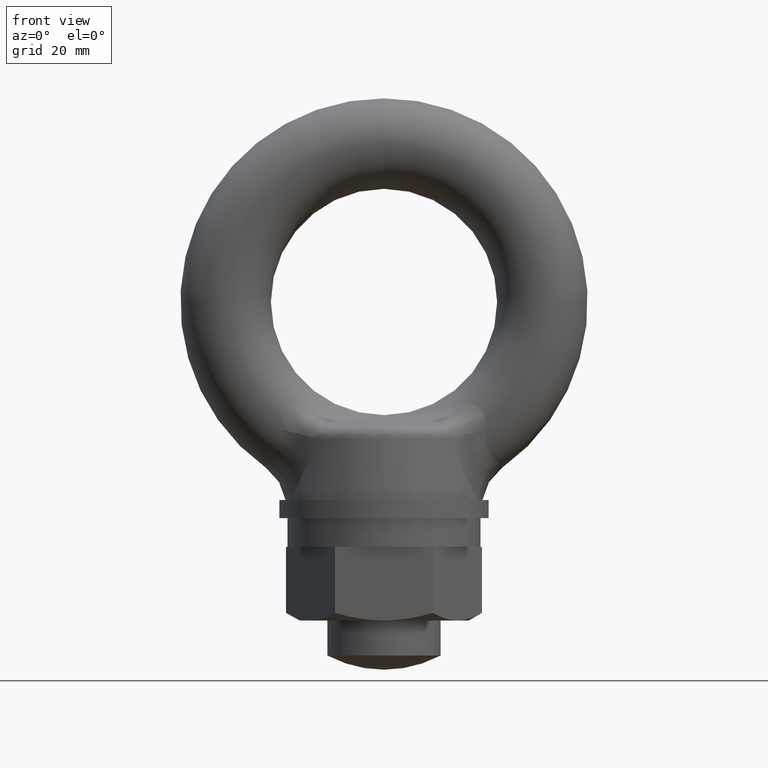
[diagram: clean part render]
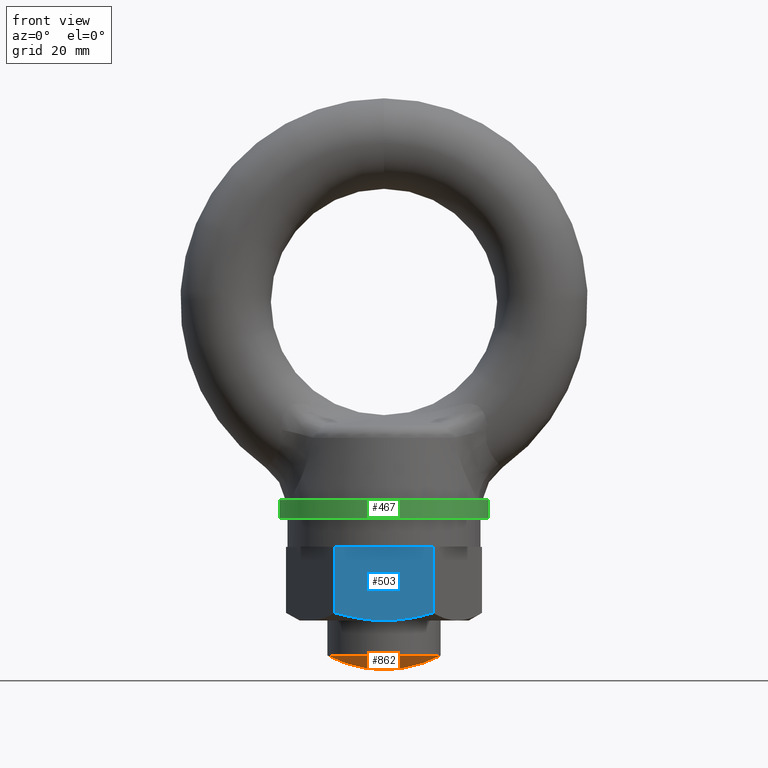
[diagram: same view with three faces highlighted in distinct colors, each labeled with its STEP entity id]
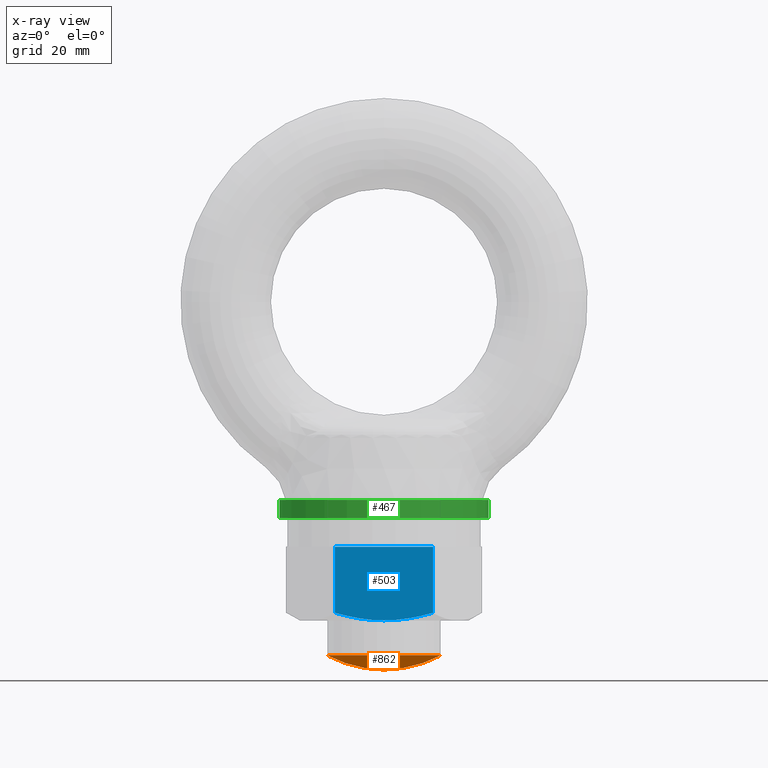
[diagram: x-ray of the same camera — body ghosted, the three highlighted faces saturated]
A machine part, front view with three faces highlighted in distinct colors.
The next image is the same camera in x-ray (body ghosted, the three faces saturated) — at least one of them is partly hidden behind the body in this view.
Their STEP definitions:

[orange] entity #862 — the highlighted spherical surface has radius 21.25 mm.
#576 = VERTEX_POINT ( 'NONE', #3193 ) ;
#577 = VERTEX_POINT ( 'NONE', #3192 ) ;
#579 = EDGE_CURVE ( 'NONE', #577, #580, #3191, .T. ) ;
#580 = VERTEX_POINT ( 'NONE', #3186 ) ;
#582 = EDGE_CURVE ( 'NONE', #576, #580, #3185, .T. ) ;
#778 = EDGE_CURVE ( 'NONE', #577, #576, #10789, .T. ) ;
#833 = ORIENTED_EDGE ( 'NONE', *, *, #579, .F. ) ;
#834 = ORIENTED_EDGE ( 'NONE', *, *, #778, .T. ) ;
#835 = ORIENTED_EDGE ( 'NONE', *, *, #582, .T. ) ;
#862 = ADVANCED_FACE ( 'NONE', ( #7627 ), #7624, .T. ) ;
#863 = EDGE_LOOP ( 'NONE', ( #833, #834, #835 ) ) ;
#3181 = DIRECTION ( 'NONE',  ( 0.0000000000000000000, 0.0000000000000000000, -1.000000000000000000 ) ) ;
#3182 = DIRECTION ( 'NONE',  ( 0.0000000000000000000, -1.000000000000000000, 0.0000000000000000000 ) ) ;
#3183 = CARTESIAN_POINT ( 'NONE',  ( 0.0000000000000000000, 0.0000000000000000000, -43.75000000000000000 ) ) ;
#3184 = AXIS2_PLACEMENT_3D ( 'NONE', #3183, #3182, #3181 ) ;
#3185 = CIRCLE ( 'NONE', #3184, 21.25000000000000400 ) ;
#3186 = CARTESIAN_POINT ( 'NONE',  ( -1.301144250936276000E-015, 0.0000000000000000000, -65.00000000000000000 ) ) ;
#3187 = DIRECTION ( 'NONE',  ( -1.000000000000000000, -1.224606353822377500E-016, 0.0000000000000000000 ) ) ;
#3188 = DIRECTION ( 'NONE',  ( -1.224606353822377300E-016, 1.000000000000000000, 0.0000000000000000000 ) ) ;
#3189 = CARTESIAN_POINT ( 'NONE',  ( 0.0000000000000000000, 0.0000000000000000000, -43.75000000000000000 ) ) ;
#3190 = AXIS2_PLACEMENT_3D ( 'NONE', #3189, #3188, #3187 ) ;
#3191 = CIRCLE ( 'NONE', #3190, 21.25000000000000000 ) ;
#3192 = CARTESIAN_POINT ( 'NONE',  ( 9.999998711995109700, 0.0000000000000000000, -62.50000068693589800 ) ) ;
#3193 = CARTESIAN_POINT ( 'NONE',  ( -9.999998711995109700, 1.224606274957423500E-015, -62.50000068693589800 ) ) ;
#7621 = DIRECTION ( 'NONE',  ( -1.000000000000000000, 0.0000000000000000000, 0.0000000000000000000 ) ) ;
#7622 = DIRECTION ( 'NONE',  ( 0.0000000000000000000, 1.000000000000000000, 0.0000000000000000000 ) ) ;
#7623 = AXIS2_PLACEMENT_3D ( 'NONE', #7626, #7622, #7621 ) ;
#7624 = SPHERICAL_SURFACE ( 'NONE', #7623, 21.25000000000000000 ) ;
#7626 = CARTESIAN_POINT ( 'NONE',  ( 0.0000000000000000000, 0.0000000000000000000, -43.75000000000000000 ) ) ;
#7627 = FACE_OUTER_BOUND ( 'NONE', #863, .T. ) ;
#10789 = CIRCLE ( 'NONE', #10832, 9.999998711995109700 ) ;
#10829 = DIRECTION ( 'NONE',  ( -1.000000000000000000, 0.0000000000000000000, 0.0000000000000000000 ) ) ;
#10830 = DIRECTION ( 'NONE',  ( 0.0000000000000000000, 0.0000000000000000000, -1.000000000000000000 ) ) ;
#10831 = CARTESIAN_POINT ( 'NONE',  ( 0.0000000000000000000, 0.0000000000000000000, -62.50000068693589800 ) ) ;
#10832 = AXIS2_PLACEMENT_3D ( 'NONE', #10831, #10830, #10829 ) ;

[blue] entity #503 — the highlighted planar face has unit normal (0, 1, 0).
#325 = VERTEX_POINT ( 'NONE', #642 ) ;
#328 = EDGE_CURVE ( 'NONE', #329, #325, #640, .T. ) ;
#329 = VERTEX_POINT ( 'NONE', #630 ) ;
#336 = EDGE_LOOP ( 'NONE', ( #504, #508, #511, #513, #514 ) ) ;
#337 = EDGE_CURVE ( 'NONE', #507, #325, #2182, .T. ) ;
#503 = ADVANCED_FACE ( 'NONE', ( #3075 ), #3073, .F. ) ;
#504 = ORIENTED_EDGE ( 'NONE', *, *, #505, .F. ) ;
#505 = EDGE_CURVE ( 'NONE', #506, #507, #3059, .T. ) ;
#506 = VERTEX_POINT ( 'NONE', #3058 ) ;
#507 = VERTEX_POINT ( 'NONE', #3060 ) ;
#508 = ORIENTED_EDGE ( 'NONE', *, *, #509, .F. ) ;
#509 = EDGE_CURVE ( 'NONE', #510, #506, #3049, .T. ) ;
#510 = VERTEX_POINT ( 'NONE', #3045 ) ;
#511 = ORIENTED_EDGE ( 'NONE', *, *, #512, .F. ) ;
#512 = EDGE_CURVE ( 'NONE', #329, #510, #2862, .T. ) ;
#513 = ORIENTED_EDGE ( 'NONE', *, *, #328, .T. ) ;
#514 = ORIENTED_EDGE ( 'NONE', *, *, #337, .F. ) ;
#630 = CARTESIAN_POINT ( 'NONE',  ( -8.660253999999998300, -15.00000000000000000, -43.29999900000014900 ) ) ;
#631 = DIRECTION ( 'NONE',  ( 0.0000000000000000000, 0.0000000000000000000, -1.000000000000000000 ) ) ;
#632 = VECTOR ( 'NONE', #631, 1000.000000000000000 ) ;
#633 = CARTESIAN_POINT ( 'NONE',  ( -8.660253999999998300, -15.00000000000000000, 943.6999969999999400 ) ) ;
#640 = LINE ( 'NONE', #633, #632 ) ;
#642 = CARTESIAN_POINT ( 'NONE',  ( -8.660253999999998300, -15.00000000000000000, -54.96025704876919300 ) ) ;
#2096 = CARTESIAN_POINT ( 'NONE',  ( -7.250773704282158500, -15.00000000000000200, -55.36713896151079000 ) ) ;
#2097 = CARTESIAN_POINT ( 'NONE',  ( -5.808530979648736500, -15.00000000000000000, -55.70798355773236900 ) ) ;
#2098 = CARTESIAN_POINT ( 'NONE',  ( -2.918366813997370200, -15.00000000000000400, -56.17406471936622100 ) ) ;
#2099 = CARTESIAN_POINT ( 'NONE',  ( -1.464404437983628500, -15.00000000000000000, -56.30000300000009600 ) ) ;
#2130 = CARTESIAN_POINT ( 'NONE',  ( -8.660253999999998300, -15.00000000000000000, -54.96025704876919300 ) ) ;
#2179 = CARTESIAN_POINT ( 'NONE',  ( 0.0000000000000000000, -15.00000000000000000, -56.30000300000009600 ) ) ;
#2182 = B_SPLINE_CURVE_WITH_KNOTS ( 'NONE', 3,
 ( #2179, #2099, #2098, #2097, #2096, #2130 ),
 .UNSPECIFIED., .F., .F.,
 ( 4, 2, 4 ),
 ( 0.04779124132650731200, 0.05217642100845698600, 0.05656160069040665900 ),
 .UNSPECIFIED. ) ;
#2859 = DIRECTION ( 'NONE',  ( 1.000000000000000000, 0.0000000000000000000, 0.0000000000000000000 ) ) ;
#2860 = VECTOR ( 'NONE', #2859, 1000.000000000000000 ) ;
#2861 = CARTESIAN_POINT ( 'NONE',  ( -8.660253999999998300, -15.00000000000000000, -43.29999900000014900 ) ) ;
#2862 = LINE ( 'NONE', #2861, #2860 ) ;
#3045 = CARTESIAN_POINT ( 'NONE',  ( 8.660253999999998300, -15.00000000000000000, -43.29999900000014900 ) ) ;
#3046 = DIRECTION ( 'NONE',  ( 0.0000000000000000000, 0.0000000000000000000, -1.000000000000000000 ) ) ;
#3047 = VECTOR ( 'NONE', #3046, 1000.000000000000000 ) ;
#3048 = CARTESIAN_POINT ( 'NONE',  ( 8.660253999999998300, -15.00000000000000000, 943.6999969999999400 ) ) ;
#3049 = LINE ( 'NONE', #3048, #3047 ) ;
#3050 = CARTESIAN_POINT ( 'NONE',  ( 0.0000000000000000000, -15.00000000000000000, -56.30000300000009600 ) ) ;
#3051 = CARTESIAN_POINT ( 'NONE',  ( 0.7327011086299636300, -15.00000000000000200, -56.30000300000008900 ) ) ;
#3052 = CARTESIAN_POINT ( 'NONE',  ( 1.468331681756608600, -15.00000000000000000, -56.26881246783327100 ) ) ;
#3053 = CARTESIAN_POINT ( 'NONE',  ( 2.943301964262833500, -15.00000000000000200, -56.14491709987431300 ) ) ;
#3054 = CARTESIAN_POINT ( 'NONE',  ( 3.672874707161993600, -15.00000000000000000, -56.05316407389835800 ) ) ;
#3055 = CARTESIAN_POINT ( 'NONE',  ( 5.841206664520827400, -14.99999999999999800, -55.70111161903209100 ) ) ;
#3056 = CARTESIAN_POINT ( 'NONE',  ( 7.259722152322114000, -14.99999999999999800, -55.36455576707690800 ) ) ;
#3057 = CARTESIAN_POINT ( 'NONE',  ( 8.660253999999998300, -15.00000000000000000, -54.96025704876919300 ) ) ;
#3058 = CARTESIAN_POINT ( 'NONE',  ( 8.660253999999998300, -15.00000000000000000, -54.96025704876919300 ) ) ;
#3059 = B_SPLINE_CURVE_WITH_KNOTS ( 'NONE', 3,
 ( #3057, #3056, #3055, #3054, #3053, #3052, #3051, #3050 ),
 .UNSPECIFIED., .F., .F.,
 ( 4, 2, 2, 4 ),
 ( 0.03901490623446082800, 0.04340307378048406700, 0.04559715755349569300, 0.04779124132650731200 ),
 .UNSPECIFIED. ) ;
#3060 = CARTESIAN_POINT ( 'NONE',  ( 0.0000000000000000000, -15.00000000000000000, -56.30000300000009600 ) ) ;
#3061 = DIRECTION ( 'NONE',  ( 0.0000000000000000000, 0.0000000000000000000, 1.000000000000000000 ) ) ;
#3062 = DIRECTION ( 'NONE',  ( 0.0000000000000000000, 1.000000000000000000, 0.0000000000000000000 ) ) ;
#3063 = CARTESIAN_POINT ( 'NONE',  ( -8.660253999999998300, -15.00000000000000000, 943.6999969999999400 ) ) ;
#3072 = AXIS2_PLACEMENT_3D ( 'NONE', #3063, #3062, #3061 ) ;
#3073 = PLANE ( 'NONE',  #3072 ) ;
#3075 = FACE_OUTER_BOUND ( 'NONE', #336, .T. ) ;

[green] entity #467 — the highlighted cylindrical surface (partial cylindrical patch) has radius 18.5 mm, axis along (0, 0, -1).
#319 = EDGE_CURVE ( 'NONE', #3567, #3570, #654, .T. ) ;
#467 = ADVANCED_FACE ( 'NONE', ( #2892 ), #2891, .T. ) ;
#468 = EDGE_LOOP ( 'NONE', ( #3587, #3588, #3543, #3544 ) ) ;
#650 = DIRECTION ( 'NONE',  ( 1.000000000000000000, 0.0000000000000000000, 0.0000000000000000000 ) ) ;
#651 = DIRECTION ( 'NONE',  ( 0.0000000000000000000, 0.0000000000000000000, -1.000000000000000000 ) ) ;
#652 = CARTESIAN_POINT ( 'NONE',  ( 0.0000000000000000000, 0.0000000000000000000, -38.20000100000019900 ) ) ;
#653 = AXIS2_PLACEMENT_3D ( 'NONE', #652, #651, #650 ) ;
#654 = CIRCLE ( 'NONE', #653, 18.50000000000000000 ) ;
#2886 = DIRECTION ( 'NONE',  ( -1.000000000000000000, 0.0000000000000000000, 0.0000000000000000000 ) ) ;
#2887 = DIRECTION ( 'NONE',  ( 0.0000000000000000000, 0.0000000000000000000, -1.000000000000000000 ) ) ;
#2888 = CARTESIAN_POINT ( 'NONE',  ( 0.0000000000000000000, 0.0000000000000000000, 961.7999990000000700 ) ) ;
#2889 = AXIS2_PLACEMENT_3D ( 'NONE', #2888, #2887, #2886 ) ;
#2891 = CYLINDRICAL_SURFACE ( 'NONE', #2889, 18.50000000000000000 ) ;
#2892 = FACE_OUTER_BOUND ( 'NONE', #468, .T. ) ;
#3543 = ORIENTED_EDGE ( 'NONE', *, *, #3572, .T. ) ;
#3544 = ORIENTED_EDGE ( 'NONE', *, *, #319, .F. ) ;
#3561 = VERTEX_POINT ( 'NONE', #8890 ) ;
#3564 = VERTEX_POINT ( 'NONE', #8884 ) ;
#3566 = EDGE_CURVE ( 'NONE', #3564, #3567, #8883, .T. ) ;
#3567 = VERTEX_POINT ( 'NONE', #8932 ) ;
#3570 = VERTEX_POINT ( 'NONE', #8926 ) ;
#3572 = EDGE_CURVE ( 'NONE', #3561, #3570, #8925, .T. ) ;
#3587 = ORIENTED_EDGE ( 'NONE', *, *, #3566, .F. ) ;
#3588 = ORIENTED_EDGE ( 'NONE', *, *, #3589, .T. ) ;
#3589 = EDGE_CURVE ( 'NONE', #3564, #3561, #8950, .T. ) ;
#8881 = VECTOR ( 'NONE', #8933, 1000.000000000000000 ) ;
#8882 = CARTESIAN_POINT ( 'NONE',  ( 18.50000000000000000, 2.265521754571397900E-015, 961.7999990000000700 ) ) ;
#8883 = LINE ( 'NONE', #8882, #8881 ) ;
#8884 = CARTESIAN_POINT ( 'NONE',  ( 18.50000000000000000, 2.265521754571397900E-015, -35.00000000000000000 ) ) ;
#8890 = CARTESIAN_POINT ( 'NONE',  ( -18.50000000000000000, 0.0000000000000000000, -35.00000000000000000 ) ) ;
#8922 = DIRECTION ( 'NONE',  ( 0.0000000000000000000, 0.0000000000000000000, -1.000000000000000000 ) ) ;
#8923 = VECTOR ( 'NONE', #8922, 1000.000000000000000 ) ;
#8924 = CARTESIAN_POINT ( 'NONE',  ( -18.50000000000000000, 0.0000000000000000000, 961.7999990000000700 ) ) ;
#8925 = LINE ( 'NONE', #8924, #8923 ) ;
#8926 = CARTESIAN_POINT ( 'NONE',  ( -18.50000000000000000, 0.0000000000000000000, -38.20000100000019900 ) ) ;
#8932 = CARTESIAN_POINT ( 'NONE',  ( 18.50000000000000000, 2.265521754571397900E-015, -38.20000100000019900 ) ) ;
#8933 = DIRECTION ( 'NONE',  ( 0.0000000000000000000, 0.0000000000000000000, -1.000000000000000000 ) ) ;
#8946 = DIRECTION ( 'NONE',  ( 1.000000000000000000, 0.0000000000000000000, 0.0000000000000000000 ) ) ;
#8947 = DIRECTION ( 'NONE',  ( 0.0000000000000000000, 0.0000000000000000000, -1.000000000000000000 ) ) ;
#8948 = CARTESIAN_POINT ( 'NONE',  ( 0.0000000000000000000, 0.0000000000000000000, -35.00000000000000000 ) ) ;
#8949 = AXIS2_PLACEMENT_3D ( 'NONE', #8948, #8947, #8946 ) ;
#8950 = CIRCLE ( 'NONE', #8949, 18.50000000000000000 ) ;